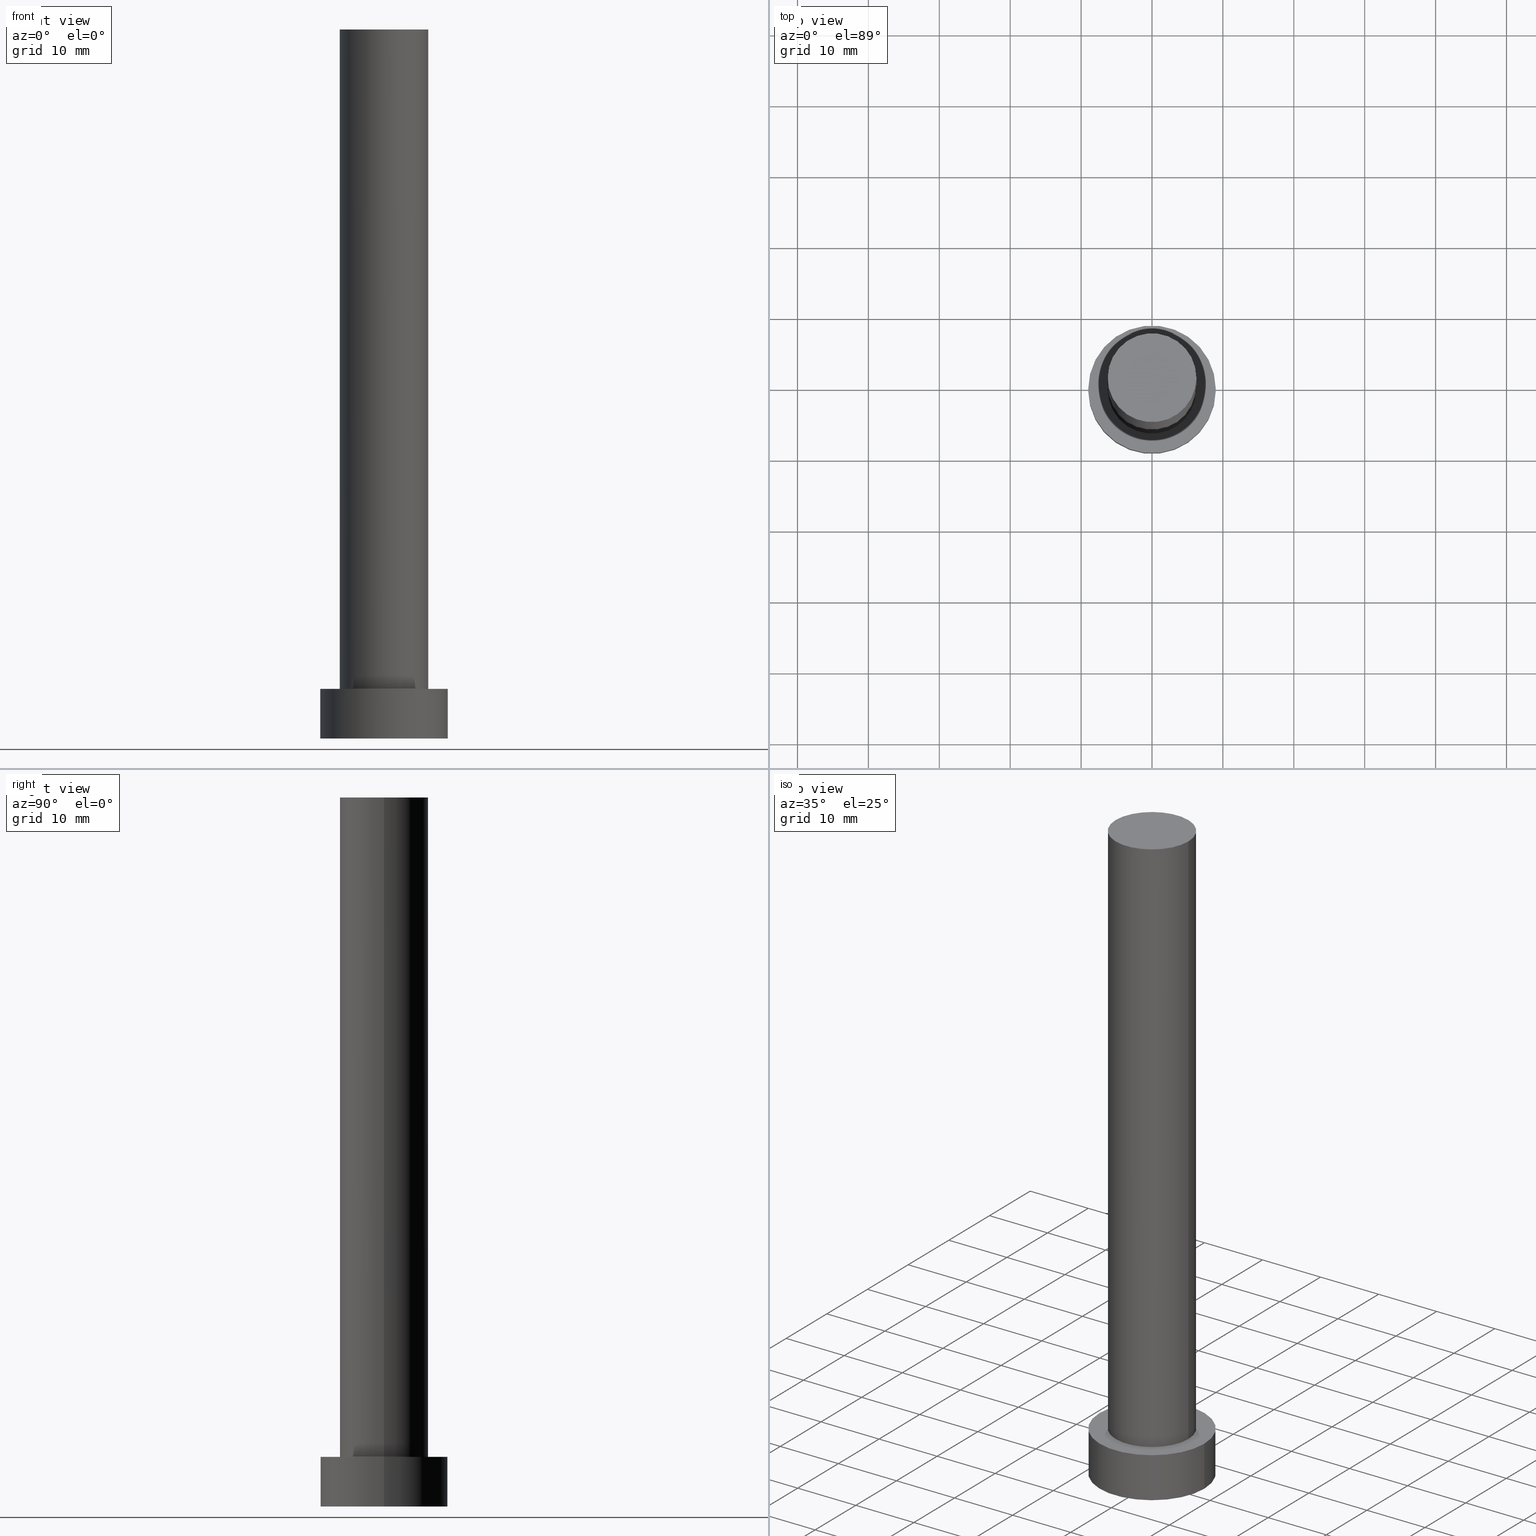
[diagram: canonical four-view strip — front | top / right | iso, engineering-drawing reading convention]
A machine part, canonical four-view strip (front | top / right | iso — engineering-drawing reading convention). The complete STEP part file that produces these views, byte-faithful:
ISO-10303-21;
HEADER;
FILE_DESCRIPTION (( 'STEP AP203' ),
    '1' );
FILE_NAME ('765d.STEP',
    '2023-02-12T10:56:01',
    ( '' ),
    ( '' ),
    'SwSTEP 2.0',
    'SolidWorks 2019',
    '' );
FILE_SCHEMA (( 'CONFIG_CONTROL_DESIGN' ));
ENDSEC;

DATA;
#1 = CIRCLE ( 'NONE', #36, 6.250000000000000000 ) ;
#2 = CARTESIAN_POINT ( 'NONE',  ( 0.000000000000000000, 0.000000000000000000, 100.0000000000000000 ) ) ;
#3 = EDGE_LOOP ( 'NONE', ( #35, #137 ) ) ;
#4 = ADVANCED_FACE ( 'NONE', ( #157 ), #234, .T. ) ;
#5 = FACE_OUTER_BOUND ( 'NONE', #214, .T. ) ;
#6 = ADVANCED_FACE ( 'NONE', ( #86 ), #238, .F. ) ;
#7 = DIRECTION ( 'NONE',  ( -1.000000000000000000, 0.000000000000000000, 0.000000000000000000 ) ) ;
#8 = LOCAL_TIME ( 11, 56, 1.000000000000000000, #17 ) ;
#9 = SECURITY_CLASSIFICATION_LEVEL ( 'unclassified' ) ;
#10 = EDGE_CURVE ( 'NONE', #221, #78, #231, .T. ) ;
#11 = VERTEX_POINT ( 'NONE', #142 ) ;
#12 = APPROVAL_DATE_TIME ( #90, #109 ) ;
#13 = ORIENTED_EDGE ( 'NONE', *, *, #230, .T. ) ;
#14 = AXIS2_PLACEMENT_3D ( 'NONE', #16, #95, #148 ) ;
#15 = CARTESIAN_POINT ( 'NONE',  ( 0.000000000000000000, 0.000000000000000000, 7.000000000000000000 ) ) ;
#16 = CARTESIAN_POINT ( 'NONE',  ( 0.000000000000000000, 0.000000000000000000, 100.0000000000000000 ) ) ;
#17 = COORDINATED_UNIVERSAL_TIME_OFFSET ( 1, 0, .AHEAD. ) ;
#18 = CYLINDRICAL_SURFACE ( 'NONE', #50, 9.000000000000000000 ) ;
#19 = EDGE_CURVE ( 'NONE', #201, #11, #144, .T. ) ;
#20 = DATE_TIME_ROLE ( 'classification_date' ) ;
#21 = PLANE ( 'NONE',  #14 ) ;
#22 = AXIS2_PLACEMENT_3D ( 'NONE', #197, #27, #121 ) ;
#23 = DIRECTION ( 'NONE',  ( -0.000000000000000000, -0.000000000000000000, -1.000000000000000000 ) ) ;
#24 = DIRECTION ( 'NONE',  ( 1.000000000000000000, 0.000000000000000000, -0.000000000000000000 ) ) ;
#25 = CARTESIAN_POINT ( 'NONE',  ( 0.000000000000000000, 0.000000000000000000, 0.000000000000000000 ) ) ;
#26 = AXIS2_PLACEMENT_3D ( 'NONE', #235, #70, #118 ) ;
#27 = DIRECTION ( 'NONE',  ( 0.000000000000000000, 0.000000000000000000, 1.000000000000000000 ) ) ;
#28 = EDGE_CURVE ( 'NONE', #78, #221, #176, .T. ) ;
#29 = PERSON_AND_ORGANIZATION ( #255, #194 ) ;
#30 = ORIENTED_EDGE ( 'NONE', *, *, #139, .F. ) ;
#31 = CARTESIAN_POINT ( 'NONE',  ( 6.250000000000000000, 7.654042494670955634E-16, 7.000000000000000000 ) ) ;
#32 = PERSON_AND_ORGANIZATION ( #255, #194 ) ;
#33 = VERTEX_POINT ( 'NONE', #53 ) ;
#34 = CARTESIAN_POINT ( 'NONE',  ( 6.250000000000000000, 7.654042494670955634E-16, 100.0000000000000000 ) ) ;
#35 = ORIENTED_EDGE ( 'NONE', *, *, #153, .F. ) ;
#36 = AXIS2_PLACEMENT_3D ( 'NONE', #132, #123, #92 ) ;
#37 = CC_DESIGN_APPROVAL ( #239, ( #39 ) ) ;
#38 = VERTEX_POINT ( 'NONE', #31 ) ;
#39 = PRODUCT_DEFINITION ( 'NEZN�M�', '', #100, #66 ) ;
#40 = ORIENTED_EDGE ( 'NONE', *, *, #230, .F. ) ;
#41 = DATE_AND_TIME ( #211, #161 ) ;
#42 = UNCERTAINTY_MEASURE_WITH_UNIT (LENGTH_MEASURE( 1.000000000000000082E-05 ), #99, 'distance_accuracy_value', 'NONE');
#43 = VECTOR ( 'NONE', #64, 1000.000000000000000 ) ;
#44 = PERSON_AND_ORGANIZATION_ROLE ( 'classification_officer' ) ;
#45 = DIRECTION ( 'NONE',  ( 0.000000000000000000, 0.000000000000000000, 1.000000000000000000 ) ) ;
#46 = ORIENTED_EDGE ( 'NONE', *, *, #28, .F. ) ;
#47 = APPROVAL_ROLE ( '' ) ;
#48 = PERSON_AND_ORGANIZATION_ROLE ( 'creator' ) ;
#49 = EDGE_LOOP ( 'NONE', ( #250, #141 ) ) ;
#50 = AXIS2_PLACEMENT_3D ( 'NONE', #96, #160, #105 ) ;
#51 = DIRECTION ( 'NONE',  ( -0.000000000000000000, -0.000000000000000000, -1.000000000000000000 ) ) ;
#52 = PERSON_AND_ORGANIZATION ( #255, #194 ) ;
#53 = CARTESIAN_POINT ( 'NONE',  ( -6.250000000000000000, 0.000000000000000000, 100.0000000000000000 ) ) ;
#54 = ORIENTED_EDGE ( 'NONE', *, *, #19, .T. ) ;
#55 = VERTEX_POINT ( 'NONE', #34 ) ;
#56 = CARTESIAN_POINT ( 'NONE',  ( 9.000000000000000000, 1.102182119232617714E-15, 7.000000000000000000 ) ) ;
#57 = AXIS2_PLACEMENT_3D ( 'NONE', #158, #122, #119 ) ;
#58 = APPROVAL_PERSON_ORGANIZATION ( #52, #239, #47 ) ;
#59 = COORDINATED_UNIVERSAL_TIME_OFFSET ( 1, 0, .AHEAD. ) ;
#60 = CC_DESIGN_DATE_AND_TIME_ASSIGNMENT ( #74, #147, ( #39 ) ) ;
#61 = PERSON_AND_ORGANIZATION ( #255, #194 ) ;
#62 = DIRECTION ( 'NONE',  ( -0.000000000000000000, -0.000000000000000000, -1.000000000000000000 ) ) ;
#63 = AXIS2_PLACEMENT_3D ( 'NONE', #179, #77, #146 ) ;
#64 = DIRECTION ( 'NONE',  ( -0.000000000000000000, -0.000000000000000000, -1.000000000000000000 ) ) ;
#65 = AXIS2_PLACEMENT_3D ( 'NONE', #217, #51, #7 ) ;
#66 = DESIGN_CONTEXT ( 'detailed design', #219, 'design' ) ;
#67 = CC_DESIGN_PERSON_AND_ORGANIZATION_ASSIGNMENT ( #32, #44, ( #247 ) ) ;
#68 = CALENDAR_DATE ( 2023, 12, 2 ) ;
#69 = EDGE_LOOP ( 'NONE', ( #30, #205, #178, #185 ) ) ;
#70 = DIRECTION ( 'NONE',  ( 0.000000000000000000, 0.000000000000000000, 1.000000000000000000 ) ) ;
#71 = DIRECTION ( 'NONE',  ( 0.000000000000000000, 0.000000000000000000, 1.000000000000000000 ) ) ;
#72 = AXIS2_PLACEMENT_3D ( 'NONE', #114, #45, #115 ) ;
#73 = ORIENTED_EDGE ( 'NONE', *, *, #28, .T. ) ;
#74 = DATE_AND_TIME ( #248, #196 ) ;
#75 = AXIS2_PLACEMENT_3D ( 'NONE', #25, #181, #241 ) ;
#76 = CC_DESIGN_APPROVAL ( #109, ( #100 ) ) ;
#77 = DIRECTION ( 'NONE',  ( -0.000000000000000000, -0.000000000000000000, -1.000000000000000000 ) ) ;
#78 = VERTEX_POINT ( 'NONE', #208 ) ;
#79 = APPROVAL_ROLE ( '' ) ;
#80 =( NAMED_UNIT ( * ) PLANE_ANGLE_UNIT ( ) SI_UNIT ( $, .RADIAN. ) );
#81 = EDGE_CURVE ( 'NONE', #55, #38, #191, .T. ) ;
#82 = SHAPE_DEFINITION_REPRESENTATION ( #93, #227 ) ;
#83 = APPROVAL_PERSON_ORGANIZATION ( #61, #159, #79 ) ;
#84 = FACE_OUTER_BOUND ( 'NONE', #91, .T. ) ;
#85 = COORDINATED_UNIVERSAL_TIME_OFFSET ( 1, 0, .AHEAD. ) ;
#86 = FACE_OUTER_BOUND ( 'NONE', #252, .T. ) ;
#87 = AXIS2_PLACEMENT_3D ( 'NONE', #244, #186, #224 ) ;
#88 = PERSON_AND_ORGANIZATION ( #255, #194 ) ;
#89 = VECTOR ( 'NONE', #23, 1000.000000000000000 ) ;
#90 = DATE_AND_TIME ( #107, #213 ) ;
#91 = EDGE_LOOP ( 'NONE', ( #40, #164, #166, #73 ) ) ;
#92 = DIRECTION ( 'NONE',  ( 1.000000000000000000, 0.000000000000000000, 0.000000000000000000 ) ) ;
#93 = PRODUCT_DEFINITION_SHAPE ( 'NONE', 'NONE',  #39 ) ;
#94 = FACE_OUTER_BOUND ( 'NONE', #189, .T. ) ;
#95 = DIRECTION ( 'NONE',  ( 0.000000000000000000, 0.000000000000000000, 1.000000000000000000 ) ) ;
#96 = CARTESIAN_POINT ( 'NONE',  ( 0.000000000000000000, 0.000000000000000000, 7.000000000000000000 ) ) ;
#97 =( NAMED_UNIT ( * ) SI_UNIT ( $, .STERADIAN. ) SOLID_ANGLE_UNIT ( ) );
#98 = CALENDAR_DATE ( 2023, 12, 2 ) ;
#99 =( LENGTH_UNIT ( ) NAMED_UNIT ( * ) SI_UNIT ( .MILLI., .METRE. ) );
#100 = PRODUCT_DEFINITION_FORMATION_WITH_SPECIFIED_SOURCE ( 'LIBOVOLN�', '', #172, .NOT_KNOWN. ) ;
#101 = CC_DESIGN_APPROVAL ( #159, ( #247 ) ) ;
#102 = DIRECTION ( 'NONE',  ( 1.000000000000000000, 0.000000000000000000, 0.000000000000000000 ) ) ;
#103 = PERSON_AND_ORGANIZATION ( #255, #194 ) ;
#104 = AXIS2_PLACEMENT_3D ( 'NONE', #155, #193, #102 ) ;
#105 = DIRECTION ( 'NONE',  ( -1.000000000000000000, 0.000000000000000000, 0.000000000000000000 ) ) ;
#106 = AXIS2_PLACEMENT_3D ( 'NONE', #2, #62, #154 ) ;
#107 = CALENDAR_DATE ( 2023, 12, 2 ) ;
#108 = PERSON_AND_ORGANIZATION ( #255, #194 ) ;
#109 = APPROVAL ( #204, 'NEUR�EN�' ) ;
#110 = CARTESIAN_POINT ( 'NONE',  ( 0.000000000000000000, 0.000000000000000000, 7.000000000000000000 ) ) ;
#111 = MANIFOLD_SOLID_BREP ( 'P�idat vysunut�m3', #173 ) ;
#112 = CARTESIAN_POINT ( 'NONE',  ( -6.250000000000000000, 0.000000000000000000, 100.0000000000000000 ) ) ;
#113 = ORIENTED_EDGE ( 'NONE', *, *, #143, .T. ) ;
#114 = CARTESIAN_POINT ( 'NONE',  ( 0.000000000000000000, 0.000000000000000000, 0.000000000000000000 ) ) ;
#115 = DIRECTION ( 'NONE',  ( 1.000000000000000000, 0.000000000000000000, 0.000000000000000000 ) ) ;
#116 = CC_DESIGN_PERSON_AND_ORGANIZATION_ASSIGNMENT ( #216, #48, ( #39 ) ) ;
#117 = ADVANCED_FACE ( 'NONE', ( #126 ), #21, .T. ) ;
#118 = DIRECTION ( 'NONE',  ( 1.000000000000000000, 0.000000000000000000, -0.000000000000000000 ) ) ;
#119 = DIRECTION ( 'NONE',  ( 1.000000000000000000, 0.000000000000000000, 0.000000000000000000 ) ) ;
#120 = CYLINDRICAL_SURFACE ( 'NONE', #63, 9.000000000000000000 ) ;
#121 = DIRECTION ( 'NONE',  ( 1.000000000000000000, 0.000000000000000000, 0.000000000000000000 ) ) ;
#122 = DIRECTION ( 'NONE',  ( 0.000000000000000000, 0.000000000000000000, 1.000000000000000000 ) ) ;
#123 = DIRECTION ( 'NONE',  ( 0.000000000000000000, 0.000000000000000000, 1.000000000000000000 ) ) ;
#124 = EDGE_LOOP ( 'NONE', ( #145, #207, #113, #129 ) ) ;
#125 = DIRECTION ( 'NONE',  ( 0.000000000000000000, 0.000000000000000000, 1.000000000000000000 ) ) ;
#126 = FACE_OUTER_BOUND ( 'NONE', #49, .T. ) ;
#127 = CYLINDRICAL_SURFACE ( 'NONE', #65, 6.250000000000000000 ) ;
#128 = APPROVAL_ROLE ( '' ) ;
#129 = ORIENTED_EDGE ( 'NONE', *, *, #153, .T. ) ;
#130 = DIRECTION ( 'NONE',  ( 1.000000000000000000, 0.000000000000000000, 0.000000000000000000 ) ) ;
#131 = APPROVAL_PERSON_ORGANIZATION ( #88, #109, #128 ) ;
#132 = CARTESIAN_POINT ( 'NONE',  ( 0.000000000000000000, 0.000000000000000000, 7.000000000000000000 ) ) ;
#133 = CARTESIAN_POINT ( 'NONE',  ( -9.000000000000000000, 0.000000000000000000, 7.000000000000000000 ) ) ;
#134 = MECHANICAL_CONTEXT ( 'NONE', #156, 'mechanical' ) ;
#135 = APPROVAL_STATUS ( 'not_yet_approved' ) ;
#136 = DATE_AND_TIME ( #68, #177 ) ;
#137 = ORIENTED_EDGE ( 'NONE', *, *, #169, .F. ) ;
#138 = AXIS2_PLACEMENT_3D ( 'NONE', #110, #71, #130 ) ;
#139 = EDGE_CURVE ( 'NONE', #55, #33, #229, .T. ) ;
#140 = CIRCLE ( 'NONE', #104, 6.250000000000000000 ) ;
#141 = ORIENTED_EDGE ( 'NONE', *, *, #139, .T. ) ;
#142 = CARTESIAN_POINT ( 'NONE',  ( -9.000000000000000000, 0.000000000000000000, 7.000000000000000000 ) ) ;
#143 = EDGE_CURVE ( 'NONE', #33, #168, #151, .T. ) ;
#144 = CIRCLE ( 'NONE', #22, 9.000000000000000000 ) ;
#145 = ORIENTED_EDGE ( 'NONE', *, *, #81, .F. ) ;
#146 = DIRECTION ( 'NONE',  ( -1.000000000000000000, 0.000000000000000000, 0.000000000000000000 ) ) ;
#147 = DATE_TIME_ROLE ( 'creation_date' ) ;
#148 = DIRECTION ( 'NONE',  ( 1.000000000000000000, 0.000000000000000000, -0.000000000000000000 ) ) ;
#149 = CIRCLE ( 'NONE', #138, 6.250000000000000000 ) ;
#150 = PRODUCT_RELATED_PRODUCT_CATEGORY ( 'detail', '', ( #172 ) ) ;
#151 = LINE ( 'NONE', #112, #199 ) ;
#152 = APPLICATION_PROTOCOL_DEFINITION ( 'international standard', 'config_control_design', 1994, #156 ) ;
#153 = EDGE_CURVE ( 'NONE', #168, #38, #1, .T. ) ;
#154 = DIRECTION ( 'NONE',  ( -1.000000000000000000, 0.000000000000000000, 0.000000000000000000 ) ) ;
#155 = CARTESIAN_POINT ( 'NONE',  ( 0.000000000000000000, 0.000000000000000000, 100.0000000000000000 ) ) ;
#156 = APPLICATION_CONTEXT ( 'configuration controlled 3d designs of mechanical parts and assemblies' ) ;
#157 = FACE_OUTER_BOUND ( 'NONE', #69, .T. ) ;
#158 = CARTESIAN_POINT ( 'NONE',  ( 0.000000000000000000, 0.000000000000000000, 0.000000000000000000 ) ) ;
#159 = APPROVAL ( #171, 'NEUR�EN�' ) ;
#160 = DIRECTION ( 'NONE',  ( -0.000000000000000000, -0.000000000000000000, -1.000000000000000000 ) ) ;
#161 = LOCAL_TIME ( 11, 56, 1.000000000000000000, #59 ) ;
#162 = PERSON_AND_ORGANIZATION_ROLE ( 'creator' ) ;
#163 = ADVANCED_FACE ( 'NONE', ( #246, #5 ), #188, .T. ) ;
#164 = ORIENTED_EDGE ( 'NONE', *, *, #182, .F. ) ;
#165 = ORIENTED_EDGE ( 'NONE', *, *, #10, .T. ) ;
#166 = ORIENTED_EDGE ( 'NONE', *, *, #198, .T. ) ;
#167 = CARTESIAN_POINT ( 'NONE',  ( 9.000000000000000000, 1.102182119232617714E-15, 7.000000000000000000 ) ) ;
#168 = VERTEX_POINT ( 'NONE', #223 ) ;
#169 = EDGE_CURVE ( 'NONE', #38, #168, #149, .T. ) ;
#170 = DATE_AND_TIME ( #98, #8 ) ;
#171 = APPROVAL_STATUS ( 'not_yet_approved' ) ;
#172 = PRODUCT ( '765d', '765d', '', ( #134 ) ) ;
#173 = CLOSED_SHELL ( 'NONE', ( #4, #192, #212, #163, #6, #220, #117 ) ) ;
#174 = PERSON_AND_ORGANIZATION_ROLE ( 'design_owner' ) ;
#175 = CC_DESIGN_DATE_AND_TIME_ASSIGNMENT ( #41, #20, ( #247 ) ) ;
#176 = CIRCLE ( 'NONE', #75, 9.000000000000000000 ) ;
#177 = LOCAL_TIME ( 11, 56, 1.000000000000000000, #236 ) ;
#178 = ORIENTED_EDGE ( 'NONE', *, *, #169, .T. ) ;
#179 = CARTESIAN_POINT ( 'NONE',  ( 0.000000000000000000, 0.000000000000000000, 7.000000000000000000 ) ) ;
#180 = APPROVAL_DATE_TIME ( #136, #239 ) ;
#181 = DIRECTION ( 'NONE',  ( 0.000000000000000000, 0.000000000000000000, 1.000000000000000000 ) ) ;
#182 = EDGE_CURVE ( 'NONE', #11, #201, #203, .T. ) ;
#183 = AXIS2_PLACEMENT_3D ( 'NONE', #15, #187, #190 ) ;
#184 = PERSON_AND_ORGANIZATION_ROLE ( 'design_supplier' ) ;
#185 = ORIENTED_EDGE ( 'NONE', *, *, #143, .F. ) ;
#186 = DIRECTION ( 'NONE',  ( 0.000000000000000000, 0.000000000000000000, 1.000000000000000000 ) ) ;
#187 = DIRECTION ( 'NONE',  ( 0.000000000000000000, 0.000000000000000000, 1.000000000000000000 ) ) ;
#188 = PLANE ( 'NONE',  #225 ) ;
#189 = EDGE_LOOP ( 'NONE', ( #206, #13, #165, #243 ) ) ;
#190 = DIRECTION ( 'NONE',  ( 1.000000000000000000, 0.000000000000000000, 0.000000000000000000 ) ) ;
#191 = LINE ( 'NONE', #251, #210 ) ;
#192 = ADVANCED_FACE ( 'NONE', ( #94 ), #120, .T. ) ;
#193 = DIRECTION ( 'NONE',  ( 0.000000000000000000, 0.000000000000000000, 1.000000000000000000 ) ) ;
#194 = ORGANIZATION ( 'NEUR�EN�', 'NEUR�EN�', '' ) ;
#195 = CC_DESIGN_PERSON_AND_ORGANIZATION_ASSIGNMENT ( #108, #184, ( #100 ) ) ;
#196 = LOCAL_TIME ( 11, 56, 1.000000000000000000, #85 ) ;
#197 = CARTESIAN_POINT ( 'NONE',  ( 0.000000000000000000, 0.000000000000000000, 7.000000000000000000 ) ) ;
#198 = EDGE_CURVE ( 'NONE', #11, #78, #253, .T. ) ;
#199 = VECTOR ( 'NONE', #226, 1000.000000000000000 ) ;
#200 = CC_DESIGN_SECURITY_CLASSIFICATION ( #247, ( #100 ) ) ;
#201 = VERTEX_POINT ( 'NONE', #56 ) ;
#202 = CARTESIAN_POINT ( 'NONE',  ( 0.000000000000000000, 0.000000000000000000, 7.000000000000000000 ) ) ;
#203 = CIRCLE ( 'NONE', #183, 9.000000000000000000 ) ;
#204 = APPROVAL_STATUS ( 'not_yet_approved' ) ;
#205 = ORIENTED_EDGE ( 'NONE', *, *, #81, .T. ) ;
#206 = ORIENTED_EDGE ( 'NONE', *, *, #19, .F. ) ;
#207 = ORIENTED_EDGE ( 'NONE', *, *, #245, .F. ) ;
#208 = CARTESIAN_POINT ( 'NONE',  ( -9.000000000000000000, 0.000000000000000000, 0.000000000000000000 ) ) ;
#209 = CARTESIAN_POINT ( 'NONE',  ( 9.000000000000000000, 1.102182119232617714E-15, 0.000000000000000000 ) ) ;
#210 = VECTOR ( 'NONE', #249, 1000.000000000000000 ) ;
#211 = CALENDAR_DATE ( 2023, 12, 2 ) ;
#212 = ADVANCED_FACE ( 'NONE', ( #84 ), #18, .T. ) ;
#213 = LOCAL_TIME ( 11, 56, 1.000000000000000000, #240 ) ;
#214 = EDGE_LOOP ( 'NONE', ( #222, #54 ) ) ;
#215 = CC_DESIGN_PERSON_AND_ORGANIZATION_ASSIGNMENT ( #29, #162, ( #100 ) ) ;
#216 = PERSON_AND_ORGANIZATION ( #255, #194 ) ;
#217 = CARTESIAN_POINT ( 'NONE',  ( 0.000000000000000000, 0.000000000000000000, 100.0000000000000000 ) ) ;
#218 = APPLICATION_PROTOCOL_DEFINITION ( 'international standard', 'config_control_design', 1994, #219 ) ;
#219 = APPLICATION_CONTEXT ( 'configuration controlled 3d designs of mechanical parts and assemblies' ) ;
#220 = ADVANCED_FACE ( 'NONE', ( #237 ), #127, .T. ) ;
#221 = VERTEX_POINT ( 'NONE', #209 ) ;
#222 = ORIENTED_EDGE ( 'NONE', *, *, #182, .T. ) ;
#223 = CARTESIAN_POINT ( 'NONE',  ( -6.250000000000000000, 0.000000000000000000, 7.000000000000000000 ) ) ;
#224 = DIRECTION ( 'NONE',  ( 1.000000000000000000, 0.000000000000000000, 0.000000000000000000 ) ) ;
#225 = AXIS2_PLACEMENT_3D ( 'NONE', #202, #125, #24 ) ;
#226 = DIRECTION ( 'NONE',  ( -0.000000000000000000, -0.000000000000000000, -1.000000000000000000 ) ) ;
#227 = ADVANCED_BREP_SHAPE_REPRESENTATION ( '765d', ( #111, #72 ), #233 ) ;
#228 = APPROVAL_DATE_TIME ( #170, #159 ) ;
#229 = CIRCLE ( 'NONE', #87, 6.250000000000000000 ) ;
#230 = EDGE_CURVE ( 'NONE', #201, #221, #254, .T. ) ;
#231 = CIRCLE ( 'NONE', #57, 9.000000000000000000 ) ;
#232 = CC_DESIGN_PERSON_AND_ORGANIZATION_ASSIGNMENT ( #103, #174, ( #172 ) ) ;
#233 =( GEOMETRIC_REPRESENTATION_CONTEXT ( 3 ) GLOBAL_UNCERTAINTY_ASSIGNED_CONTEXT ( ( #42 ) ) GLOBAL_UNIT_ASSIGNED_CONTEXT ( ( #99, #80, #97 ) ) REPRESENTATION_CONTEXT ( 'NONE', 'WORKASPACE' ) );
#234 = CYLINDRICAL_SURFACE ( 'NONE', #106, 6.250000000000000000 ) ;
#235 = CARTESIAN_POINT ( 'NONE',  ( 0.000000000000000000, 0.000000000000000000, 0.000000000000000000 ) ) ;
#236 = COORDINATED_UNIVERSAL_TIME_OFFSET ( 1, 0, .AHEAD. ) ;
#237 = FACE_OUTER_BOUND ( 'NONE', #124, .T. ) ;
#238 = PLANE ( 'NONE',  #26 ) ;
#239 = APPROVAL ( #135, 'NEUR�EN�' ) ;
#240 = COORDINATED_UNIVERSAL_TIME_OFFSET ( 1, 0, .AHEAD. ) ;
#241 = DIRECTION ( 'NONE',  ( 1.000000000000000000, 0.000000000000000000, 0.000000000000000000 ) ) ;
#242 = ORIENTED_EDGE ( 'NONE', *, *, #10, .F. ) ;
#243 = ORIENTED_EDGE ( 'NONE', *, *, #198, .F. ) ;
#244 = CARTESIAN_POINT ( 'NONE',  ( 0.000000000000000000, 0.000000000000000000, 100.0000000000000000 ) ) ;
#245 = EDGE_CURVE ( 'NONE', #33, #55, #140, .T. ) ;
#246 = FACE_BOUND ( 'NONE', #3, .T. ) ;
#247 = SECURITY_CLASSIFICATION ( '', '', #9 ) ;
#248 = CALENDAR_DATE ( 2023, 12, 2 ) ;
#249 = DIRECTION ( 'NONE',  ( -0.000000000000000000, -0.000000000000000000, -1.000000000000000000 ) ) ;
#250 = ORIENTED_EDGE ( 'NONE', *, *, #245, .T. ) ;
#251 = CARTESIAN_POINT ( 'NONE',  ( 6.250000000000000000, 7.654042494670955634E-16, 100.0000000000000000 ) ) ;
#252 = EDGE_LOOP ( 'NONE', ( #46, #242 ) ) ;
#253 = LINE ( 'NONE', #133, #89 ) ;
#254 = LINE ( 'NONE', #167, #43 ) ;
#255 = PERSON ( 'NEUR�EN�', 'NEUR�EN�', 'NEUR�EN�', ('NEUR�EN�'), ('NEUR�EN�'), ('NEUR�EN�') ) ;
ENDSEC;
END-ISO-10303-21;
